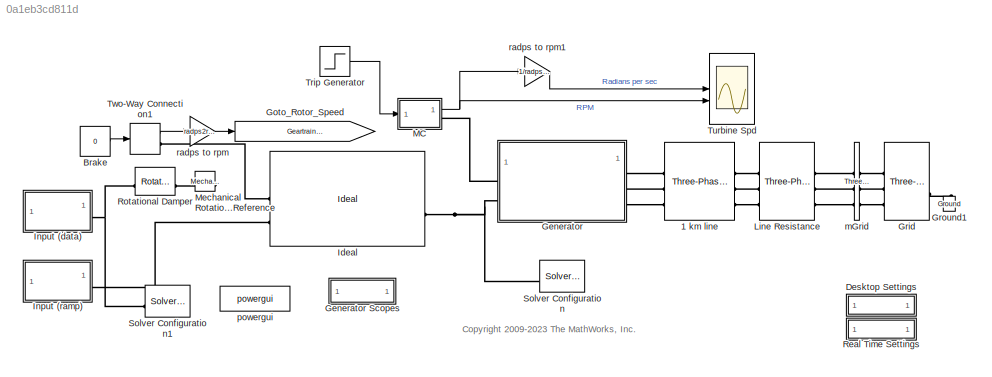
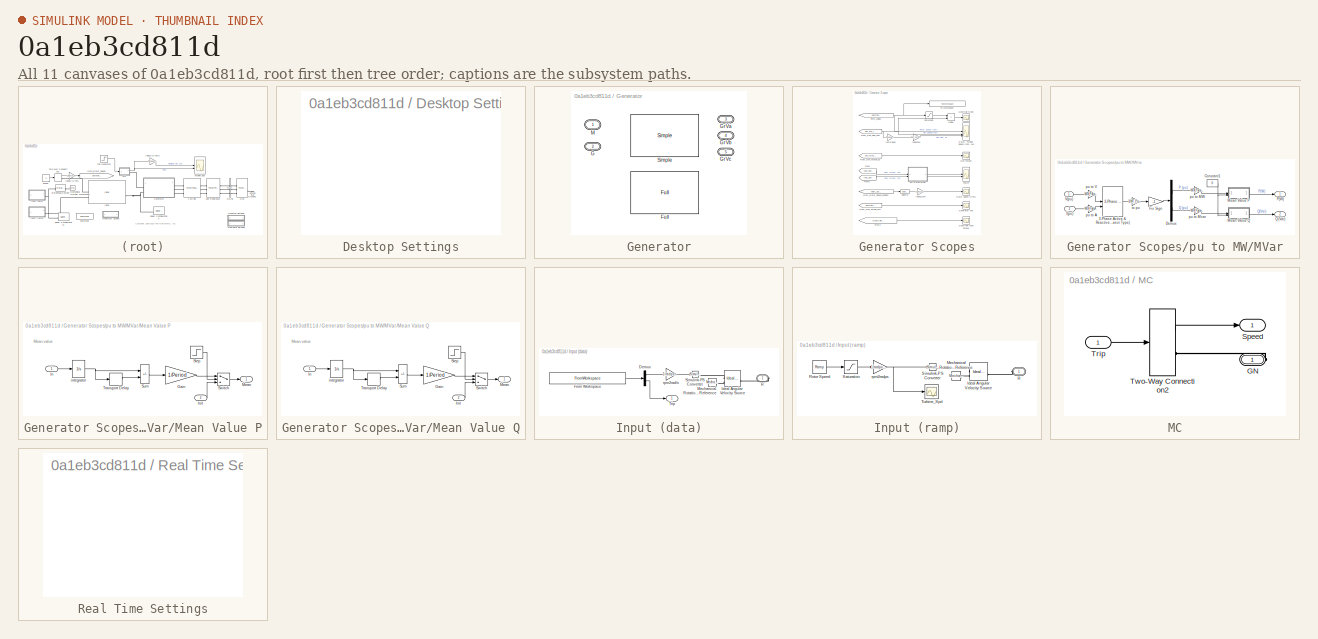
[diagram: thumbnail index - all 11 canvases of the model, root first then tree order]
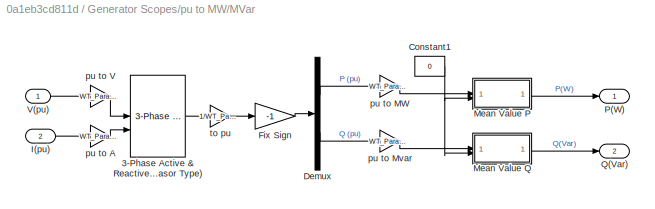
MODEL slx_0a1eb3cd811d
KIND model
CONFIG AbsTol = auto
CONFIG EnableMultiTasking = on
CONFIG FixedStep = auto
CONFIG MaxStep = 0.01
CONFIG MinStep = auto
CONFIG PostLoadFcn = warning off ne_sli:simulator:input:FilteredInputs
CONFIG PreLoadFcn = load Generator_Test_DATA
CONFIG RelTol = 1e-5
CONFIG SampleTimeConstraint = Unconstrained
CONFIG SolverName = ode23t
CONFIG StartTime = 0.0
CONFIG StopTime = 15
BLOCK [Reference] 1 km line   REF=spsThreePhasePISectionLineLib/Three-Phase
PI Section Line
  AttributesFormatString = \n
  SourceBlock = spsThreePhasePISectionLineLib/Three-Phase\nPI Section Line
  SourceType = Three-Phase PI Section Line
BLOCK [Constant] Brake
  Value = 0
BLOCK [SubSystem] Desktop Settings
  OpenFcn = set_param(bdroot,'Solver','ODE23t','MaxStep','0.01');                            \n                           \n                                                      \nf    = Simulink.FindOptions('FollowLinks',0,'LookUnderMasks','none');\ntvar_solverBlock = Simulink.findBlocks(bdroot, 'SubClassName', 'solver',f);\n                                                                                \nfor i=1:...<+418ch>
BLOCK [SubSystem] Generator
  AttributesFormatString = %<ActiveVariant>
  LabelModeActiveChoice = Full
  Variant = on
  VariantControlMode = label
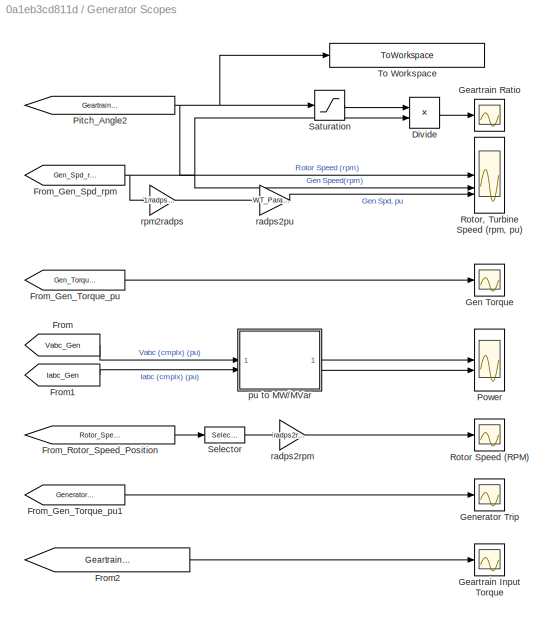
BLOCK [SubSystem] Generator Scopes
  AncestorBlock = Generator_Lib/Generator Scopes
  LibrarySourceBlock = Generator_Lib/Generator Scopes
BLOCK [Product] Generator Scopes/Divide
  Inputs = /*
  NameLocation = top
BLOCK [From] Generator Scopes/From
  CloseFcn = tagdialog Close
  GotoTag = Vabc_Gen
  TagVisibility = global
BLOCK [From] Generator Scopes/From1
  CloseFcn = tagdialog Close
  GotoTag = Iabc_Gen
  TagVisibility = global
BLOCK [From] Generator Scopes/From2
  CloseFcn = tagdialog Close
  GotoTag = Geartrain_Input_Torque
  TagVisibility = global
BLOCK [From] Generator Scopes/From_Gen_Spd_rpm
  CloseFcn = tagdialog Close
  GotoTag = Gen_Spd_rpm
  TagVisibility = global
BLOCK [From] Generator Scopes/From_Gen_Torque_pu
  CloseFcn = tagdialog Close
  GotoTag = Gen_Torque_pu
  TagVisibility = global
BLOCK [From] Generator Scopes/From_Gen_Torque_pu1
  CloseFcn = tagdialog Close
  GotoTag = Generator_Trip
  TagVisibility = global
BLOCK [From] Generator Scopes/From_Rotor_Speed_Position
  CloseFcn = tagdialog Close
  GotoTag = Rotor_Speed_Position
BLOCK [Scope] Generator Scopes/Geartrain Input Torque
  Floating = off
  NumInputPorts = 1
  ScopeSpecificationString = Simulink.scopes.TimeScopeBlockCfg('CurrentConfiguration', extmgr.ConfigurationSet(extmgr.Configuration('Core','General UI',true,'FigureColor',[0.5 0.5 0.5]),extmgr.Configuration('Core','Source UI',true),extmgr.Configuration('Sources','WiredSimulink',true,'DataLoggingVariableName','ScopeData11','DataLoggingSaveFormat','StructureWithTime','DataLoggingDecimation','1','DataLoggingDecimateData',true),e...<+2634ch>
BLOCK [Scope] Generator Scopes/Geartrain Ratio
  Floating = off
  NameLocation = top
  NumInputPorts = 1
  ScopeSpecificationString = Simulink.scopes.TimeScopeBlockCfg('CurrentConfiguration', extmgr.ConfigurationSet(extmgr.Configuration('Core','General UI',true),extmgr.Configuration('Core','Source UI',true),extmgr.Configuration('Sources','WiredSimulink',true,'DataLoggingVariableName','ScopeData4','DataLoggingSaveFormat','StructureWithTime','DataLoggingDecimation','1','DataLoggingDecimateData',true),extmgr.Configuration('Visuals'...<+1616ch>
BLOCK [Scope] Generator Scopes/Gen Torque
  Floating = off
  NumInputPorts = 1
  ScopeSpecificationString = Simulink.scopes.TimeScopeBlockCfg('CurrentConfiguration', extmgr.ConfigurationSet(extmgr.Configuration('Core','General UI',true,'FigureColor',[0.5 0.5 0.5]),extmgr.Configuration('Core','Source UI',true),extmgr.Configuration('Sources','WiredSimulink',true,'DataLoggingVariableName','ScopeData8','DataLoggingSaveFormat','StructureWithTime','DataLoggingDecimation','1','DataLoggingDecimateData',true),ex...<+2549ch>
BLOCK [Scope] Generator Scopes/Generator Trip
  Floating = off
  NumInputPorts = 1
  ScopeSpecificationString = Simulink.scopes.TimeScopeBlockCfg('CurrentConfiguration', extmgr.ConfigurationSet(extmgr.Configuration('Core','General UI',true),extmgr.Configuration('Core','Source UI',true),extmgr.Configuration('Sources','WiredSimulink',true,'DataLogging',true,'DataLoggingVariableName','Generator_Trip_DATA','DataLoggingSaveFormat','StructureWithTime','DataLoggingDecimation','1','DataLoggingDecimateData',true),ex...<+925ch>
BLOCK [From] Generator Scopes/Pitch_Angle2
  CloseFcn = tagdialog Close
  GotoTag = Geartrain_Input_Speed
  TagVisibility = global
BLOCK [Scope] Generator Scopes/Power
  Floating = off
  NumInputPorts = 2
  ScopeSpecificationString = Simulink.scopes.TimeScopeBlockCfg('CurrentConfiguration', extmgr.ConfigurationSet(extmgr.Configuration('Core','General UI',true,'FigureColor',[0.5 0.5 0.5]),extmgr.Configuration('Core','Source UI',true),extmgr.Configuration('Sources','WiredSimulink',true,'DataLogging',true,'DataLoggingVariableName','Generator_Power_DATA','DataLoggingSaveFormat','StructureWithTime','DataLoggingDecimation','1','Data...<+3846ch>
BLOCK [Scope] Generator Scopes/Rotor Speed (RPM)
  Floating = off
  NumInputPorts = 1
  ScopeSpecificationString = Simulink.scopes.TimeScopeBlockCfg('CurrentConfiguration', extmgr.ConfigurationSet(extmgr.Configuration('Core','General UI',true),extmgr.Configuration('Core','Source UI',true),extmgr.Configuration('Sources','WiredSimulink',true,'DataLoggingVariableName','ScopeData6','DataLoggingSaveFormat','StructureWithTime','DataLoggingDecimation','1','DataLoggingDecimateData',true),extmgr.Configuration('Visuals'...<+1661ch>
BLOCK [Scope] Generator Scopes/Rotor, Turbine Speed (rpm, pu)
  Floating = off
  NumInputPorts = 3
  ScopeSpecificationString = Simulink.scopes.TimeScopeBlockCfg('CurrentConfiguration', extmgr.ConfigurationSet(extmgr.Configuration('Core','General UI',true),extmgr.Configuration('Core','Source UI',true),extmgr.Configuration('Sources','WiredSimulink',true,'DataLogging',true,'DataLoggingVariableName','Generator_Speed_DATA','DataLoggingSaveFormat','StructureWithTime','DataLoggingDecimation','1','DataLoggingDecimateData',true),e...<+3047ch>
BLOCK [Saturate] Generator Scopes/Saturation
  LowerLimit = eps
  NameLocation = top
  UpperLimit = inf
BLOCK [Selector] Generator Scopes/Selector
  IndexOptions = Index vector (dialog)
  Indices = [2]
  InputPortWidth = 2
  OutputSizes = 1
BLOCK [ToWorkspace] Generator Scopes/To Workspace
  MaxDataPoints = inf
  SampleTime = -1
  SaveFormat = Structure With Time
  VariableName = Geartrain_Input_Speed_DATA
BLOCK [SubSystem] Generator Scopes/pu to MW//MVar
BLOCK [Reference] Generator Scopes/pu to MW//MVar/3-Phase Active & Reactive Power (Phasor Type)  REF=powerlib_extras/Phasor
Library/3-Phase
Active & Reactive Power
(Phasor Type)
  SourceBlock = powerlib_extras/Phasor\nLibrary/3-Phase\nActive & Reactive Power\n(Phasor Type)
  SourceType = 3-Phase Active & Reactive Power (Phasor Type)
BLOCK [Constant] Generator Scopes/pu to MW//MVar/Constant1
  Value = 0
BLOCK [Demux] Generator Scopes/pu to MW//MVar/Demux
  DisplayOption = none
  Outputs = 2
BLOCK [Gain] Generator Scopes/pu to MW//MVar/Fix Sign
  Gain = -1
  OutDataTypeStr = Inherit: Same as input
  ParamDataTypeStr = Inherit: Same as input
  SaturateOnIntegerOverflow = on
BLOCK [Inport] Generator Scopes/pu to MW//MVar/I(pu)
  Port = 2
BLOCK [SubSystem] Generator Scopes/pu to MW//MVar/Mean Value P
BLOCK [Gain] Generator Scopes/pu to MW//MVar/Mean Value P/Gain
  Gain = 1/Period
  OutDataTypeStr = Inherit: Same as input
  ParamDataTypeStr = Inherit: Same as input
  SaturateOnIntegerOverflow = on
BLOCK [Inport] Generator Scopes/pu to MW//MVar/Mean Value P/In
BLOCK [Inport] Generator Scopes/pu to MW//MVar/Mean Value P/Init
  Port = 2
BLOCK [Outport] Generator Scopes/pu to MW//MVar/Mean Value P/Mean
  VectorParamsAs1DForOutWhenUnconnected = off
BLOCK [Step] Generator Scopes/pu to MW//MVar/Mean Value P/Step
  SampleTime = 0
  Time = Period+eps
BLOCK [Sum] Generator Scopes/pu to MW//MVar/Mean Value P/Sum
  IconShape = rectangular
  InputSameDT = on
  Inputs = +-
  OutDataTypeStr = Inherit: Same as first input
  SaturateOnIntegerOverflow = on
BLOCK [Switch] Generator Scopes/pu to MW//MVar/Mean Value P/Switch
  InputSameDT = off
  Threshold = 0.5
BLOCK [TransportDelay] Generator Scopes/pu to MW//MVar/Mean Value P/Transport Delay
  DelayTime = Period
BLOCK [Integrator] Generator Scopes/pu to MW//MVar/Mean Value P/integrator
BLOCK [SubSystem] Generator Scopes/pu to MW//MVar/Mean Value Q
BLOCK [Gain] Generator Scopes/pu to MW//MVar/Mean Value Q/Gain
  Gain = 1/Period
  OutDataTypeStr = Inherit: Same as input
  ParamDataTypeStr = Inherit: Same as input
  SaturateOnIntegerOverflow = on
BLOCK [Inport] Generator Scopes/pu to MW//MVar/Mean Value Q/In
BLOCK [Inport] Generator Scopes/pu to MW//MVar/Mean Value Q/Init
  Port = 2
BLOCK [Outport] Generator Scopes/pu to MW//MVar/Mean Value Q/Mean
  VectorParamsAs1DForOutWhenUnconnected = off
BLOCK [Step] Generator Scopes/pu to MW//MVar/Mean Value Q/Step
  SampleTime = 0
  Time = Period+eps
BLOCK [Sum] Generator Scopes/pu to MW//MVar/Mean Value Q/Sum
  IconShape = rectangular
  InputSameDT = on
  Inputs = +-
  OutDataTypeStr = Inherit: Same as first input
  SaturateOnIntegerOverflow = on
BLOCK [Switch] Generator Scopes/pu to MW//MVar/Mean Value Q/Switch
  InputSameDT = off
  Threshold = 0.5
BLOCK [TransportDelay] Generator Scopes/pu to MW//MVar/Mean Value Q/Transport Delay
  DelayTime = Period
BLOCK [Integrator] Generator Scopes/pu to MW//MVar/Mean Value Q/integrator
BLOCK [Outport] Generator Scopes/pu to MW//MVar/P(W)
  VectorParamsAs1DForOutWhenUnconnected = off
BLOCK [Outport] Generator Scopes/pu to MW//MVar/Q(Var)
  Port = 2
  VectorParamsAs1DForOutWhenUnconnected = off
BLOCK [Inport] Generator Scopes/pu to MW//MVar/V(pu)
BLOCK [Gain] Generator Scopes/pu to MW//MVar/pu to A
  Gain = WT_Params.Generator.nominal_power/sqrt(3)/WT_Params.Generator.voltage*sqrt(2)
  OutDataTypeStr = Inherit: Same as input
  ParamDataTypeStr = Inherit: Same as input
  SaturateOnIntegerOverflow = on
BLOCK [Gain] Generator Scopes/pu to MW//MVar/pu to MW
  Gain = WT_Params.Generator.nominal_power
  OutDataTypeStr = Inherit: Same as input
  ParamDataTypeStr = Inherit: Same as input
  SaturateOnIntegerOverflow = on
BLOCK [Gain] Generator Scopes/pu to MW//MVar/pu to Mvar
  Gain = WT_Params.Generator.nominal_power
  OutDataTypeStr = Inherit: Same as input
  ParamDataTypeStr = Inherit: Same as input
  SaturateOnIntegerOverflow = on
BLOCK [Gain] Generator Scopes/pu to MW//MVar/pu to V
  Gain = WT_Params.Generator.voltage*sqrt(2)/sqrt(3)
  OutDataTypeStr = Inherit: Same as input
  ParamDataTypeStr = Inherit: Same as input
  SaturateOnIntegerOverflow = on
BLOCK [Gain] Generator Scopes/pu to MW//MVar/to pu
  Gain = 1/WT_Params.Generator.nominal_power
  OutDataTypeStr = Inherit: Same as input
  ParamDataTypeStr = Inherit: Same as input
  SaturateOnIntegerOverflow = on
BLOCK [Gain] Generator Scopes/radps2pu
  Gain = WT_Params.Generator.radps2pu
BLOCK [Gain] Generator Scopes/radps2rpm
  Gain = radps2rpm
BLOCK [Gain] Generator Scopes/rpm2radps
  Gain = 1/radps2rpm
BLOCK [Reference] Generator/Full  REF=Generator_Lib/Full
  SourceBlock = Generator_Lib/Full
BLOCK [PMIOPort] Generator/G
  Port = 2
  Side = Left
BLOCK [PMIOPort] Generator/GrVa
  Port = 3
  Side = Right
BLOCK [PMIOPort] Generator/GrVb
  Port = 4
  Side = Right
BLOCK [PMIOPort] Generator/GrVc
  Port = 5
  Side = Right
BLOCK [PMIOPort] Generator/M
  NameLocation = top
  Side = Left
  Tag = PMCPort
BLOCK [Reference] Generator/Simple  REF=Generator_Lib/Simple
  SourceBlock = Generator_Lib/Simple
BLOCK [Goto] Goto_Rotor_Speed
  GotoTag = Geartrain_Input_Speed
  TagVisibility = global
BLOCK [Reference] Grid  REF=spsThreePhaseProgrammableVoltageSourceLib/Three-Phase
Programmable
Voltage Source
  SourceBlock = spsThreePhaseProgrammableVoltageSourceLib/Three-Phase\nProgrammable\nVoltage Source
  SourceType = Three-Phase Programmable Voltage Source
BLOCK [Reference] Ground1  REF=spsGroundLib/Ground
  AttributesFormatString = \n
  NameLocation = right
  SourceBlock = spsGroundLib/Ground
  SourceType = Ground
BLOCK [Reference] Ideal  REF=Geartrain_Lib/Ideal
  SourceBlock = Geartrain_Lib/Ideal
BLOCK [SubSystem] Input (data)
BLOCK [Demux] Input (data)/Demux
  Outputs = 2
BLOCK [FromWorkspace] Input (data)/From Workspace
  VariableName = Generator_Test_DATA
BLOCK [Reference] Input (data)/Ideal Angular Velocity Source  REF=fl_lib/Mechanical/Mechanical Sources/Ideal Angular
Velocity Source
  SourceBlock = fl_lib/Mechanical/Mechanical Sources/Ideal Angular\nVelocity Source
  SourceType = Ideal Angular\nVelocity Source
BLOCK [Reference] Input (data)/Mechanical Rotational Reference  REF=fl_lib/Mechanical/Rotational Elements/Mechanical
Rotational Reference
  SourceBlock = fl_lib/Mechanical/Rotational Elements/Mechanical\nRotational Reference
  SourceType = Mechanical\nRotational Reference
BLOCK [PMIOPort] Input (data)/R
  NameLocation = top
  Side = Right
  Tag = PMCPort
BLOCK [Reference] Input (data)/Simulink-PS Converter  REF=nesl_utility/Simulink-PS
Converter
  SourceBlock = nesl_utility/Simulink-PS\nConverter
  SourceType = Simulink-PS\nConverter
BLOCK [Outport] Input (data)/Trip
  VectorParamsAs1DForOutWhenUnconnected = off
BLOCK [Gain] Input (data)/rpm2rad//s
  Gain = 1/radps2rpm
BLOCK [SubSystem] Input (ramp)
BLOCK [Reference] Input (ramp)/Ideal Angular Velocity Source  REF=fl_lib/Mechanical/Mechanical Sources/Ideal Angular
Velocity Source
  SourceBlock = fl_lib/Mechanical/Mechanical Sources/Ideal Angular\nVelocity Source
  SourceType = Ideal Angular\nVelocity Source
BLOCK [Reference] Input (ramp)/Mechanical Rotational Reference  REF=fl_lib/Mechanical/Rotational Elements/Mechanical
Rotational Reference
  SourceBlock = fl_lib/Mechanical/Rotational Elements/Mechanical\nRotational Reference
  SourceType = Mechanical\nRotational Reference
BLOCK [PMIOPort] Input (ramp)/R
  NameLocation = top
  Side = Left
  Tag = PMCPort
BLOCK [Reference] Input (ramp)/Rotor Speed  REF=simulink/Sources/Ramp
  SourceBlock = simulink/Sources/Ramp
  SourceType = Ramp
BLOCK [Saturate] Input (ramp)/Saturation
  LowerLimit = 0
  UpperLimit = final_speed
BLOCK [Reference] Input (ramp)/Simulink-PS Converter  REF=nesl_utility/Simulink-PS
Converter
  SourceBlock = nesl_utility/Simulink-PS\nConverter
  SourceType = Simulink-PS\nConverter
BLOCK [Scope] Input (ramp)/Turbine_Spd
  Floating = off
  NumInputPorts = 1
  ScopeSpecificationString = Simulink.scopes.TimeScopeBlockCfg('CurrentConfiguration', extmgr.ConfigurationSet(extmgr.Configuration('Core','General UI',true),extmgr.Configuration('Core','Source UI',true),extmgr.Configuration('Sources','WiredSimulink',true,'DataLoggingSaveFormat','StructureWithTime','DataLoggingDecimation','1','DataLoggingDecimateData',true),extmgr.Configuration('Visuals','Time Domain',true,'SerializedDisplays...<+1577ch>
BLOCK [Gain] Input (ramp)/rpm2radps
  Gain = 1/radps2rpm
  NameLocation = top
BLOCK [Reference] Line Resistance  REF=spsThreePhaseMutualInductanceZ1Z0Lib/Three-Phase
Mutual Inductance
Z1-Z0
  AttributesFormatString = \n
  SourceBlock = spsThreePhaseMutualInductanceZ1Z0Lib/Three-Phase\nMutual Inductance\nZ1-Z0
  SourceType = Three-Phase Mutual Inductance Z1-Z0
BLOCK [SubSystem] MC
  ShowPortLabels = none
BLOCK [PMIOPort] MC/GN
  Side = Right
BLOCK [Outport] MC/Speed
  VectorParamsAs1DForOutWhenUnconnected = off
BLOCK [Inport] MC/Trip
BLOCK [TwoWayConnection] MC/Two-Way Connection2
  NameLocation = top
BLOCK [Reference] Mechanical Rotational Reference  REF=fl_lib/Mechanical/Rotational Elements/Mechanical
Rotational Reference
  NameLocation = top
  SourceBlock = fl_lib/Mechanical/Rotational Elements/Mechanical\nRotational Reference
  SourceType = Mechanical\nRotational Reference
BLOCK [SubSystem] Real Time Settings
  OpenFcn = tvar_Nonlinear_Iterations = '3';                                                                                                                                                                        \ntvar_StepSize = '0.001';                                                                                                                                                                               ...<+1429ch>
BLOCK [Reference] Rotational Damper  REF=fl_lib/Mechanical/Rotational Elements/Rotational Damper
  SourceBlock = fl_lib/Mechanical/Rotational Elements/Rotational Damper
  SourceType = Rotational Damper
BLOCK [Reference] Solver Configuration  REF=nesl_utility/Solver
Configuration
  SourceBlock = nesl_utility/Solver\nConfiguration
  SourceType = Solver\nConfiguration
BLOCK [Reference] Solver Configuration1  REF=nesl_utility/Solver
Configuration
  SourceBlock = nesl_utility/Solver\nConfiguration
  SourceType = Solver\nConfiguration
BLOCK [Step] Trip Generator
  After = 0
  Before = 1
  SampleTime = 0
  Time = 10
BLOCK [Scope] Turbine Spd
  Floating = off
  NameLocation = top
  NumInputPorts = 2
  ScopeSpecificationString = Simulink.scopes.TimeScopeBlockCfg('CurrentConfiguration', extmgr.ConfigurationSet(extmgr.Configuration('Core','General UI',true,'FigureColor',[0.5 0.5 0.5]),extmgr.Configuration('Core','Source UI',true),extmgr.Configuration('Sources','WiredSimulink',true,'DataLoggingVariableName','ScopeData1','DataLoggingSaveFormat','StructureWithTime','DataLoggingDecimation','1'),extmgr.Configuration('Visuals','T...<+3756ch>
BLOCK [TwoWayConnection] Two-Way Connection1
BLOCK [Reference] mGrid  REF=spsThreePhaseVIMeasurementLib/Three-Phase
V-I Measurement
  SourceBlock = spsThreePhaseVIMeasurementLib/Three-Phase\nV-I Measurement
  SourceType = Three-Phase VI Measurement
BLOCK [Reference] powergui  REF=spspowerguiLib/powergui
  SourceBlock = spspowerguiLib/powergui
  SourceType = PSB option menu block
BLOCK [Gain] radps to rpm
  Gain = radps2rpm
  NameLocation = top
BLOCK [Gain] radps to rpm1
  Gain = 1/radps2rpm
  NameLocation = top
ANNOTATION (root): <copyright redacted>
ANNOTATION Generator Scopes/pu to MW//MVar/Mean Value P: Mean value
ANNOTATION Generator Scopes/pu to MW//MVar/Mean Value Q: Mean value
LINE Brake:1 -> Two-Way Connection1:1
LINE Input (data)/Demux:1 -> Input (data)/rpm2rad//s:1
LINE Input (data)/Demux:2 -> Input (data)/Trip:1
LINE Input (data)/From Workspace:1 -> Input (data)/Demux:1
LINE Input (data)/rpm2rad//s:1 -> Input (data)/Simulink-PS Converter:1
LINE Input (ramp)/Rotor Speed:1 -> Input (ramp)/Saturation:1
LINE Input (ramp)/Saturation:1 -> Input (ramp)/rpm2radps:1
NET Input (ramp)/rpm2radps:1 -> Input (ramp)/Simulink-PS Converter:1, Input (ramp)/Turbine_Spd:1
LINE MC/Trip:1 -> MC/Two-Way Connection2:1
LINE MC/Two-Way Connection2:1 -> MC/Speed:1
NET MC:1 -> Turbine Spd:2, radps to rpm1:1
LINE Trip Generator:1 -> MC:1
LINE Two-Way Connection1:1 -> radps to rpm:1
LINE radps to rpm1:1 -> Turbine Spd:1
LINE radps to rpm:1 -> Goto_Rotor_Speed:1
PLINE 1 km line :LConn1 -- Line Resistance:RConn1
PLINE 1 km line :LConn2 -- Line Resistance:RConn2
PLINE 1 km line :LConn3 -- Line Resistance:RConn3
PLINE 1 km line :RConn1 -- Generator:RConn1
PLINE 1 km line :RConn2 -- Generator:RConn2
PLINE 1 km line :RConn3 -- Generator:RConn3
PLINE Generator:LConn1 -- MC:RConn1
PNET net1: Generator:LConn2 -- Ideal:RConn1 -- Solver Configuration:RConn1
PLINE Grid:LConn1 -- Ground1:LConn1
PLINE Grid:RConn1 -- mGrid:LConn1
PLINE Grid:RConn2 -- mGrid:LConn2
PLINE Grid:RConn3 -- mGrid:LConn3
PLINE Ideal:LConn1 -- Two-Way Connection1:RConn1
PLINE Ideal:LConn2 -- Input (ramp):LConn1
PLINE Input (data)/Ideal Angular Velocity Source:LConn1 -- Input (data)/R:RConn1
PLINE Input (data)/Ideal Angular Velocity Source:RConn1 -- Input (data)/Simulink-PS Converter:RConn1
PLINE Input (data)/Ideal Angular Velocity Source:RConn2 -- Input (data)/Mechanical Rotational Reference:LConn1
PNET net2: Input (data):RConn1 -- Rotational Damper:LConn1 -- Solver Configuration1:RConn1
PLINE Input (ramp)/Ideal Angular Velocity Source:LConn1 -- Input (ramp)/R:RConn1
PLINE Input (ramp)/Ideal Angular Velocity Source:RConn1 -- Input (ramp)/Simulink-PS Converter:RConn1
PLINE Input (ramp)/Ideal Angular Velocity Source:RConn2 -- Input (ramp)/Mechanical Rotational Reference:LConn1
PLINE Line Resistance:LConn1 -- mGrid:RConn1
PLINE Line Resistance:LConn2 -- mGrid:RConn2
PLINE Line Resistance:LConn3 -- mGrid:RConn3
PLINE MC/GN:RConn1 -- MC/Two-Way Connection2:RConn1
PLINE Mechanical Rotational Reference:LConn1 -- Rotational Damper:RConn1
note: NET lines group one-source signal fan-out (src -> all destinations, sorted); 1:1 wires keep LINE; PNET lines group multi-terminal physical nets as a canonical sorted terminal list (undirected conserving connections); 2-terminal nets keep the pairwise PLINE form
